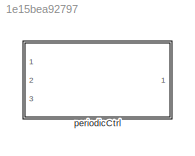
MODEL slx_1e15bea92797
KIND library
CONFIG AbsTol = auto
CONFIG EnableMultiTasking = off
CONFIG FixedStep = auto
CONFIG MaxStep = auto
CONFIG MinStep = auto
CONFIG RelTol = 1e-3
CONFIG SampleTimeConstraint = Unconstrained
CONFIG Solver = VariableStepAuto
CONFIG SolverName = VariableStepAuto
CONFIG StartTime = 0.0
CONFIG StopTime = 10.0
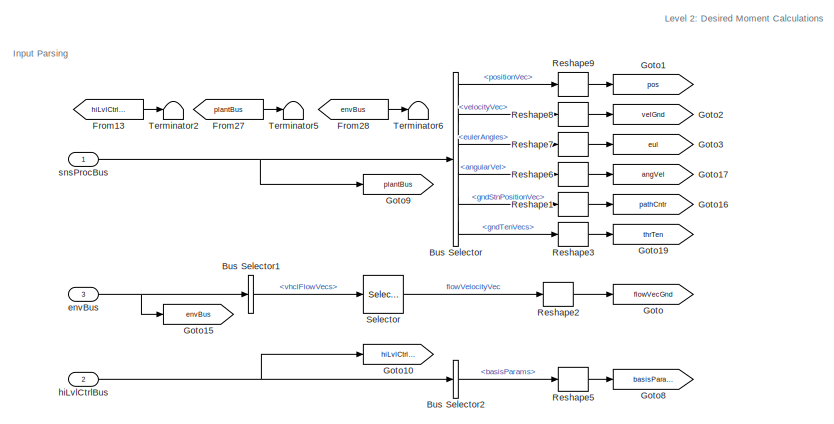
[diagram: periodicCtrl - part 1/2, middle left region]
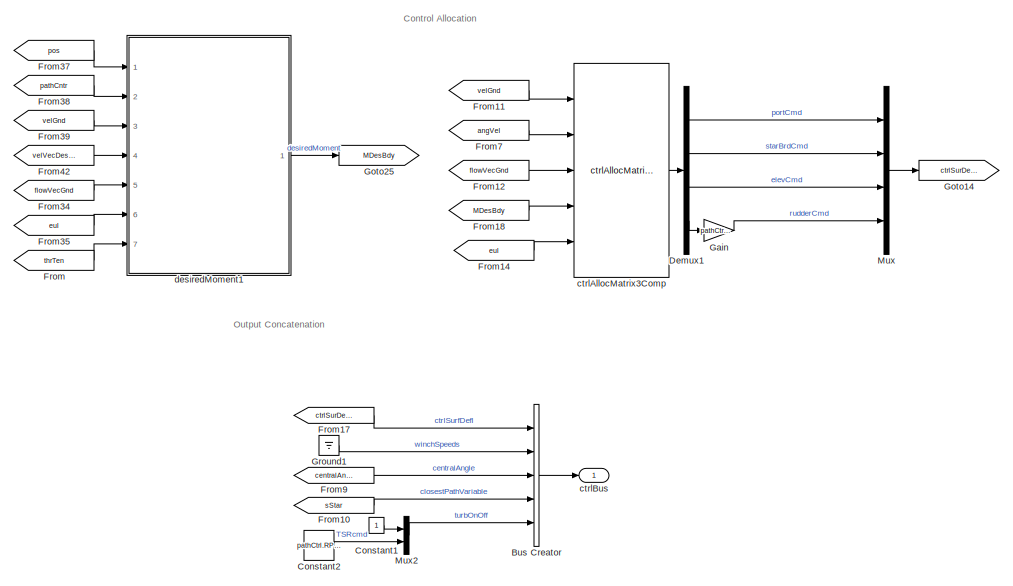
[diagram: periodicCtrl - part 2/2, right side, full height]
BLOCK [SubSystem] periodicCtrl
  InitFcn = initializeBussesFromBlock(gcb)
  LoadFcn = initializeBussesFromBlock(gcb)
  MinAlgLoopOccurrences = on
  Ports = [3, 1]
  RequestExecContextInheritance = off
  StartFcn = initializeBussesFromBlock(gcb)
  VariantControl = strcmpi(FLIGHTCONTROLLER,'pathFollowingControllerManta')
BLOCK [BusCreator] periodicCtrl/Bus Creator
  DisplayOption = bar
  InheritFromInputs = on
  Inputs = 5
  Ports = [5, 1]
BLOCK [BusSelector] periodicCtrl/Bus Selector
  OutputSignals = positionVec,velocityVec,eulerAngles,angularVel,gndStnPositionVec,gndTenVecs
  Ports = [1, 6]
BLOCK [BusSelector] periodicCtrl/Bus Selector1
  OutputSignals = vhclFlowVecs
  Ports = [1, 1]
BLOCK [BusSelector] periodicCtrl/Bus Selector2
  OutputSignals = basisParams
  Ports = [1, 1]
BLOCK [Constant] periodicCtrl/Constant1
BLOCK [Constant] periodicCtrl/Constant2
  Value = pathCtrl.RPMConst.Value
BLOCK [Demux] periodicCtrl/Demux1
  Ports = [1, 4]
BLOCK [From] periodicCtrl/From
  GotoTag = thrTen
BLOCK [From] periodicCtrl/From10
  GotoTag = sStar
BLOCK [From] periodicCtrl/From11
  GotoTag = velGnd
BLOCK [From] periodicCtrl/From12
  GotoTag = flowVecGnd
BLOCK [From] periodicCtrl/From13
  GotoTag = hiLvlCtrlBus
BLOCK [From] periodicCtrl/From14
  GotoTag = eul
BLOCK [From] periodicCtrl/From17
  GotoTag = ctrlSurDefl
BLOCK [From] periodicCtrl/From18
  GotoTag = MDesBdy
BLOCK [From] periodicCtrl/From27
  GotoTag = plantBus
BLOCK [From] periodicCtrl/From28
  GotoTag = envBus
BLOCK [From] periodicCtrl/From34
  GotoTag = flowVecGnd
BLOCK [From] periodicCtrl/From35
  GotoTag = eul
BLOCK [From] periodicCtrl/From37
  GotoTag = pos
BLOCK [From] periodicCtrl/From38
  GotoTag = pathCntr
BLOCK [From] periodicCtrl/From39
  GotoTag = velGnd
BLOCK [From] periodicCtrl/From42
  GotoTag = velVecDesGnd
BLOCK [From] periodicCtrl/From7
  GotoTag = angVel
BLOCK [From] periodicCtrl/From9
  GotoTag = centralAngle
BLOCK [Gain] periodicCtrl/Gain
  Gain = pathCtrl.rudderGain.Value
BLOCK [Goto] periodicCtrl/Goto
  GotoTag = flowVecGnd
BLOCK [Goto] periodicCtrl/Goto1
  GotoTag = pos
BLOCK [Goto] periodicCtrl/Goto10
  GotoTag = hiLvlCtrlBus
BLOCK [Goto] periodicCtrl/Goto14
  GotoTag = ctrlSurDefl
BLOCK [Goto] periodicCtrl/Goto15
  GotoTag = envBus
BLOCK [Goto] periodicCtrl/Goto16
  GotoTag = pathCntr
BLOCK [Goto] periodicCtrl/Goto17
  GotoTag = angVel
BLOCK [Goto] periodicCtrl/Goto19
  GotoTag = thrTen
BLOCK [Goto] periodicCtrl/Goto2
  GotoTag = velGnd
BLOCK [Goto] periodicCtrl/Goto25
  GotoTag = MDesBdy
BLOCK [Goto] periodicCtrl/Goto3
  GotoTag = eul
BLOCK [Goto] periodicCtrl/Goto8
  GotoTag = basisParams
BLOCK [Goto] periodicCtrl/Goto9
  GotoTag = plantBus
BLOCK [Ground] periodicCtrl/Ground1
BLOCK [Mux] periodicCtrl/Mux
  DisplayOption = bar
  Ports = [4, 1]
BLOCK [Mux] periodicCtrl/Mux2
  DisplayOption = bar
  Inputs = 2
  Ports = [2, 1]
BLOCK [Reshape] periodicCtrl/Reshape1
  OutputDimensionality = Column vector (2-D)
  Ports = [1, 1]
BLOCK [Reshape] periodicCtrl/Reshape2
  OutputDimensionality = Column vector (2-D)
  Ports = [1, 1]
BLOCK [Reshape] periodicCtrl/Reshape3
  OutputDimensionality = Column vector (2-D)
  Ports = [1, 1]
BLOCK [Reshape] periodicCtrl/Reshape5
  OutputDimensionality = Column vector (2-D)
  Ports = [1, 1]
BLOCK [Reshape] periodicCtrl/Reshape6
  OutputDimensionality = Column vector (2-D)
  Ports = [1, 1]
BLOCK [Reshape] periodicCtrl/Reshape7
  OutputDimensionality = Column vector (2-D)
  Ports = [1, 1]
BLOCK [Reshape] periodicCtrl/Reshape8
  OutputDimensionality = Column vector (2-D)
  Ports = [1, 1]
BLOCK [Reshape] periodicCtrl/Reshape9
  OutputDimensionality = Column vector (2-D)
  Ports = [1, 1]
BLOCK [Selector] periodicCtrl/Selector
  IndexOptions = Select all,Index vector (dialog)
  Indices = [1 3],5
  InputPortWidth = 3
  NumberOfDimensions = 2
  OutputSizes = 1,1
  Ports = [1, 1]
BLOCK [Terminator] periodicCtrl/Terminator2
BLOCK [Terminator] periodicCtrl/Terminator5
BLOCK [Terminator] periodicCtrl/Terminator6
BLOCK [Reference] periodicCtrl/ctrlAllocMatrix3Comp  REF=ctrlAllocMatrix3Comp_cl/ctrlAllocMatrix3Comp
  Ports = [5, 1]
  SourceBlock = ctrlAllocMatrix3Comp_cl/ctrlAllocMatrix3Comp
BLOCK [Outport] periodicCtrl/ctrlBus
  OutDataTypeStr = Bus: fltCtrlBus
  VectorParamsAs1DForOutWhenUnconnected = off
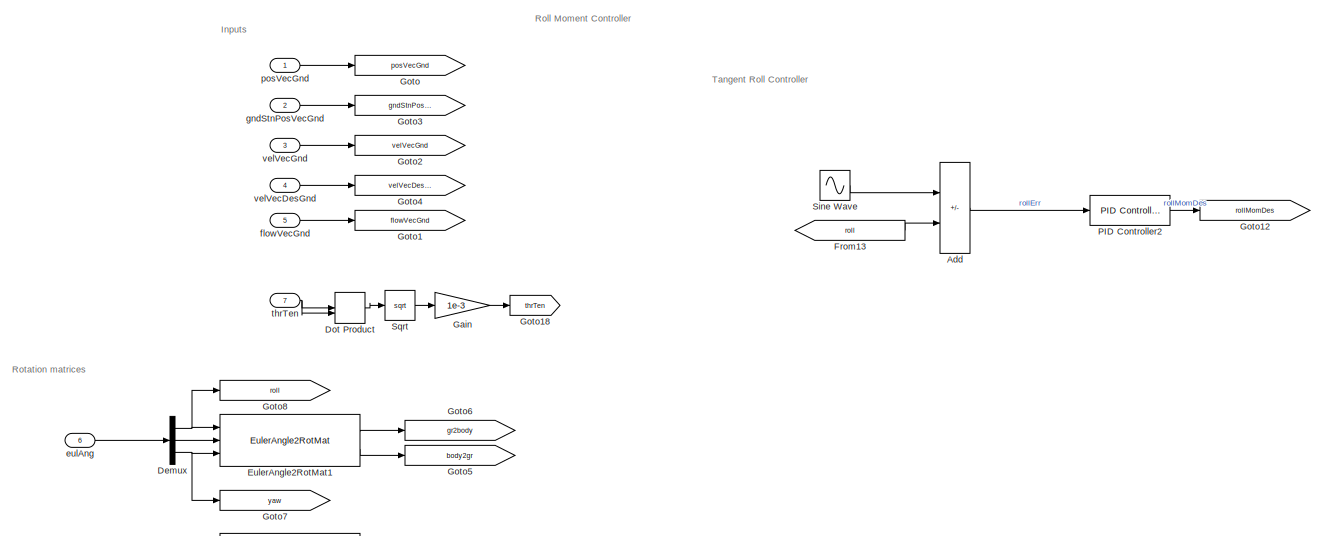
[diagram: periodicCtrl/desiredMoment1 - part 1/4, top center region]
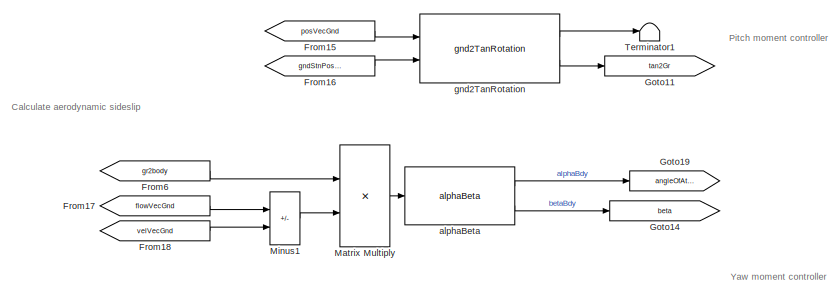
[diagram: periodicCtrl/desiredMoment1 - part 2/4, bottom left region]
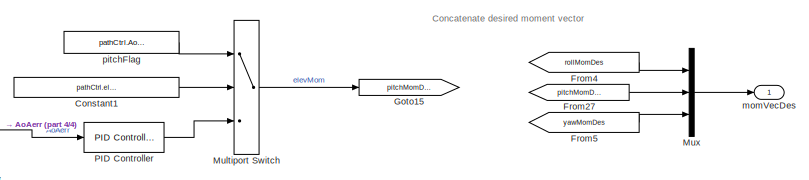
[diagram: periodicCtrl/desiredMoment1 - part 3/4, bottom right region]
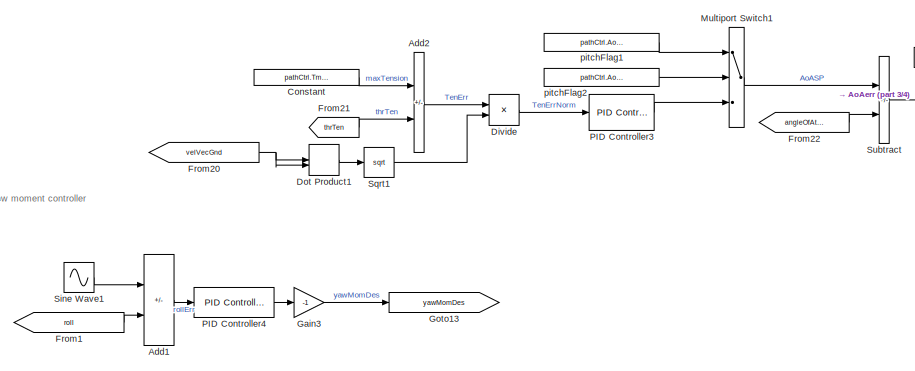
[diagram: periodicCtrl/desiredMoment1 - part 4/4, bottom center region]
BLOCK [SubSystem] periodicCtrl/desiredMoment1
  Ports = [7, 1]
  RequestExecContextInheritance = off
BLOCK [Sum] periodicCtrl/desiredMoment1/Add
  IconShape = rectangular
  Inputs = +-
  Ports = [2, 1]
BLOCK [Sum] periodicCtrl/desiredMoment1/Add1
  IconShape = rectangular
  Inputs = +-
  Ports = [2, 1]
BLOCK [Sum] periodicCtrl/desiredMoment1/Add2
  IconShape = rectangular
  Inputs = +-
  Ports = [2, 1]
BLOCK [Constant] periodicCtrl/desiredMoment1/Constant
  Value = pathCtrl.Tmax.Value
BLOCK [Constant] periodicCtrl/desiredMoment1/Constant1
  Value = pathCtrl.elevatorConst.Value
BLOCK [Demux] periodicCtrl/desiredMoment1/Demux
  Outputs = 3
  Ports = [1, 3]
BLOCK [Product] periodicCtrl/desiredMoment1/Divide
  Inputs = */
  Ports = [2, 1]
BLOCK [DotProduct] periodicCtrl/desiredMoment1/Dot Product
  OutDataTypeStr = Inherit: Inherit via internal rule
BLOCK [DotProduct] periodicCtrl/desiredMoment1/Dot Product1
  OutDataTypeStr = Inherit: Inherit via internal rule
BLOCK [Reference] periodicCtrl/desiredMoment1/EulerAngle2RotMat1  REF=eulAng2RotMat_ul/EulerAngle2RotMat
  Ports = [3, 2]
  SourceBlock = eulAng2RotMat_ul/EulerAngle2RotMat
  SourceType = SubSystem
BLOCK [From] periodicCtrl/desiredMoment1/From1
  GotoTag = roll
BLOCK [From] periodicCtrl/desiredMoment1/From13
  GotoTag = roll
BLOCK [From] periodicCtrl/desiredMoment1/From15
  GotoTag = posVecGnd
BLOCK [From] periodicCtrl/desiredMoment1/From16
  GotoTag = gndStnPosVecGnd
BLOCK [From] periodicCtrl/desiredMoment1/From17
  GotoTag = flowVecGnd
BLOCK [From] periodicCtrl/desiredMoment1/From18
  GotoTag = velVecGnd
BLOCK [From] periodicCtrl/desiredMoment1/From20
  GotoTag = velVecGnd
BLOCK [From] periodicCtrl/desiredMoment1/From21
  GotoTag = thrTen
BLOCK [From] periodicCtrl/desiredMoment1/From22
  GotoTag = angleOfAttack
BLOCK [From] periodicCtrl/desiredMoment1/From27
  GotoTag = pitchMomDes
BLOCK [From] periodicCtrl/desiredMoment1/From4
  GotoTag = rollMomDes
BLOCK [From] periodicCtrl/desiredMoment1/From5
  GotoTag = yawMomDes
BLOCK [From] periodicCtrl/desiredMoment1/From6
  GotoTag = gr2body
BLOCK [Gain] periodicCtrl/desiredMoment1/Gain
  Gain = 1e-3
BLOCK [Gain] periodicCtrl/desiredMoment1/Gain3
  Gain = -1
BLOCK [Goto] periodicCtrl/desiredMoment1/Goto
  GotoTag = posVecGnd
BLOCK [Goto] periodicCtrl/desiredMoment1/Goto1
  GotoTag = flowVecGnd
BLOCK [Goto] periodicCtrl/desiredMoment1/Goto11
  GotoTag = tan2Gr
BLOCK [Goto] periodicCtrl/desiredMoment1/Goto12
  GotoTag = rollMomDes
BLOCK [Goto] periodicCtrl/desiredMoment1/Goto13
  GotoTag = yawMomDes
BLOCK [Goto] periodicCtrl/desiredMoment1/Goto14
  GotoTag = beta
BLOCK [Goto] periodicCtrl/desiredMoment1/Goto15
  GotoTag = pitchMomDes
BLOCK [Goto] periodicCtrl/desiredMoment1/Goto18
  GotoTag = thrTen
BLOCK [Goto] periodicCtrl/desiredMoment1/Goto19
  GotoTag = angleOfAttack
BLOCK [Goto] periodicCtrl/desiredMoment1/Goto2
  GotoTag = velVecGnd
BLOCK [Goto] periodicCtrl/desiredMoment1/Goto3
  GotoTag = gndStnPosVecGnd
BLOCK [Goto] periodicCtrl/desiredMoment1/Goto4
  GotoTag = velVecDesGnd
BLOCK [Goto] periodicCtrl/desiredMoment1/Goto5
  GotoTag = body2gr
BLOCK [Goto] periodicCtrl/desiredMoment1/Goto6
  GotoTag = gr2body
BLOCK [Goto] periodicCtrl/desiredMoment1/Goto7
  GotoTag = yaw
BLOCK [Goto] periodicCtrl/desiredMoment1/Goto8
  GotoTag = roll
BLOCK [Product] periodicCtrl/desiredMoment1/Matrix Multiply
  Multiplication = Matrix(*)
  Ports = [2, 1]
BLOCK [Sum] periodicCtrl/desiredMoment1/Minus1
  IconShape = rectangular
  Inputs = +-
  Ports = [2, 1]
BLOCK [MultiPortSwitch] periodicCtrl/desiredMoment1/Multiport Switch
  DataPortIndices = {0,1}
  DataPortOrder = Specify indices
  InputSameDT = off
  Inputs = 2
  Ports = [3, 1]
  SaturateOnIntegerOverflow = off
BLOCK [MultiPortSwitch] periodicCtrl/desiredMoment1/Multiport Switch1
  DataPortIndices = {0,1}
  DataPortOrder = Specify indices
  InputSameDT = off
  Inputs = 2
  Ports = [3, 1]
  SaturateOnIntegerOverflow = off
BLOCK [Mux] periodicCtrl/desiredMoment1/Mux
  DisplayOption = bar
  Inputs = 3
  Ports = [3, 1]
BLOCK [Reference] periodicCtrl/desiredMoment1/PID Controller  REF=simulink/Continuous/PID Controller
  Ports = [1, 1]
  SourceBlock = simulink/Continuous/PID Controller
  SourceProductBaseCode = SL
  SourceType = PID 1dof
BLOCK [Reference] periodicCtrl/desiredMoment1/PID Controller2  REF=simulink/Continuous/PID Controller
  Ports = [1, 1]
  SourceBlock = simulink/Continuous/PID Controller
  SourceProductBaseCode = SL
  SourceType = PID 1dof
BLOCK [Reference] periodicCtrl/desiredMoment1/PID Controller3  REF=simulink/Continuous/PID Controller
  Ports = [1, 1]
  SourceBlock = simulink/Continuous/PID Controller
  SourceProductBaseCode = SL
  SourceType = PID 1dof
BLOCK [Reference] periodicCtrl/desiredMoment1/PID Controller4  REF=simulink/Continuous/PID Controller
  Ports = [1, 1]
  SourceBlock = simulink/Continuous/PID Controller
  SourceProductBaseCode = SL
  SourceType = PID 1dof
BLOCK [Sin] periodicCtrl/desiredMoment1/Sine Wave
  Amplitude = 0.6
  Frequency = 2*pi/90
  Ports = [0, 1]
  SampleTime = 0
BLOCK [Sin] periodicCtrl/desiredMoment1/Sine Wave1
  Amplitude = 2
  Frequency = 2*pi/90
  Ports = [0, 1]
  SampleTime = 0
BLOCK [Sqrt] periodicCtrl/desiredMoment1/Sqrt
BLOCK [Sqrt] periodicCtrl/desiredMoment1/Sqrt1
BLOCK [Sum] periodicCtrl/desiredMoment1/Subtract
  IconShape = rectangular
  Inputs = +-
  Ports = [2, 1]
BLOCK [Terminator] periodicCtrl/desiredMoment1/Terminator1
BLOCK [Reference] periodicCtrl/desiredMoment1/alphaBeta  REF=alphaBeta_ul/alphaBeta
  Ports = [1, 2]
  SourceBlock = alphaBeta_ul/alphaBeta
  SourceType = SubSystem
BLOCK [Inport] periodicCtrl/desiredMoment1/eulAng
  Port = 6
BLOCK [Inport] periodicCtrl/desiredMoment1/flowVecGnd
  Port = 5
BLOCK [Reference] periodicCtrl/desiredMoment1/gnd2TanRotation  REF=gnd2TanRotation_ul/gnd2TanRotation
  Ports = [2, 2]
  SourceBlock = gnd2TanRotation_ul/gnd2TanRotation
  SourceType = SubSystem
BLOCK [Inport] periodicCtrl/desiredMoment1/gndStnPosVecGnd
  Port = 2
BLOCK [Outport] periodicCtrl/desiredMoment1/momVecDes
  VectorParamsAs1DForOutWhenUnconnected = off
BLOCK [Constant] periodicCtrl/desiredMoment1/pitchFlag
  Value = pathCtrl.AoACtrl.Value
BLOCK [Constant] periodicCtrl/desiredMoment1/pitchFlag1
  Value = pathCtrl.AoASP.Value
BLOCK [Constant] periodicCtrl/desiredMoment1/pitchFlag2
  Value = pathCtrl.AoAConst.Value
BLOCK [Inport] periodicCtrl/desiredMoment1/posVecGnd
BLOCK [Inport] periodicCtrl/desiredMoment1/thrTen
  Port = 7
BLOCK [Inport] periodicCtrl/desiredMoment1/velVecDesGnd
  Port = 4
BLOCK [Inport] periodicCtrl/desiredMoment1/velVecGnd
  Port = 3
BLOCK [Inport] periodicCtrl/envBus
  OutDataTypeStr = Bus: envBus
  Port = 3
BLOCK [Inport] periodicCtrl/hiLvlCtrlBus
  OutDataTypeStr = Bus: hiLvlCtrlBus
  Port = 2
BLOCK [Inport] periodicCtrl/snsProcBus
  OutDataTypeStr = Bus: sensorsProcessingBus
ANNOTATION periodicCtrl: Control Allocation
ANNOTATION periodicCtrl: Input Parsing
ANNOTATION periodicCtrl: Level 2: Desired Moment Calculations
ANNOTATION periodicCtrl: Output Concatenation
ANNOTATION periodicCtrl/desiredMoment1: Calculate aerodynamic sideslip
ANNOTATION periodicCtrl/desiredMoment1: Concatenate desired moment vector
ANNOTATION periodicCtrl/desiredMoment1: Inputs
ANNOTATION periodicCtrl/desiredMoment1: Pitch moment controller
ANNOTATION periodicCtrl/desiredMoment1: Roll Moment Controller
ANNOTATION periodicCtrl/desiredMoment1: Rotation matrices
ANNOTATION periodicCtrl/desiredMoment1: Tangent Roll Controller
ANNOTATION periodicCtrl/desiredMoment1: Yaw moment controller
LINE periodicCtrl/Bus Creator:1 -> periodicCtrl/ctrlBus:1
LINE periodicCtrl/Bus Selector1:1 -> periodicCtrl/Selector:1
LINE periodicCtrl/Bus Selector2:1 -> periodicCtrl/Reshape5:1
LINE periodicCtrl/Bus Selector:1 -> periodicCtrl/Reshape9:1
LINE periodicCtrl/Bus Selector:2 -> periodicCtrl/Reshape8:1
LINE periodicCtrl/Bus Selector:3 -> periodicCtrl/Reshape7:1
LINE periodicCtrl/Bus Selector:4 -> periodicCtrl/Reshape6:1
LINE periodicCtrl/Bus Selector:5 -> periodicCtrl/Reshape1:1
LINE periodicCtrl/Bus Selector:6 -> periodicCtrl/Reshape3:1
LINE periodicCtrl/Constant1:1 -> periodicCtrl/Mux2:1
LINE periodicCtrl/Constant2:1 -> periodicCtrl/Mux2:2
LINE periodicCtrl/Demux1:1 -> periodicCtrl/Mux:1
LINE periodicCtrl/Demux1:2 -> periodicCtrl/Mux:2
LINE periodicCtrl/Demux1:3 -> periodicCtrl/Mux:3
LINE periodicCtrl/Demux1:4 -> periodicCtrl/Gain:1
LINE periodicCtrl/From10:1 -> periodicCtrl/Bus Creator:4
LINE periodicCtrl/From11:1 -> periodicCtrl/ctrlAllocMatrix3Comp:1
LINE periodicCtrl/From12:1 -> periodicCtrl/ctrlAllocMatrix3Comp:3
LINE periodicCtrl/From13:1 -> periodicCtrl/Terminator2:1
LINE periodicCtrl/From14:1 -> periodicCtrl/ctrlAllocMatrix3Comp:5
LINE periodicCtrl/From17:1 -> periodicCtrl/Bus Creator:1
LINE periodicCtrl/From18:1 -> periodicCtrl/ctrlAllocMatrix3Comp:4
LINE periodicCtrl/From27:1 -> periodicCtrl/Terminator5:1
LINE periodicCtrl/From28:1 -> periodicCtrl/Terminator6:1
LINE periodicCtrl/From34:1 -> periodicCtrl/desiredMoment1:5
LINE periodicCtrl/From35:1 -> periodicCtrl/desiredMoment1:6
LINE periodicCtrl/From37:1 -> periodicCtrl/desiredMoment1:1
LINE periodicCtrl/From38:1 -> periodicCtrl/desiredMoment1:2
LINE periodicCtrl/From39:1 -> periodicCtrl/desiredMoment1:3
LINE periodicCtrl/From42:1 -> periodicCtrl/desiredMoment1:4
LINE periodicCtrl/From7:1 -> periodicCtrl/ctrlAllocMatrix3Comp:2
LINE periodicCtrl/From9:1 -> periodicCtrl/Bus Creator:3
LINE periodicCtrl/From:1 -> periodicCtrl/desiredMoment1:7
LINE periodicCtrl/Gain:1 -> periodicCtrl/Mux:4
LINE periodicCtrl/Ground1:1 -> periodicCtrl/Bus Creator:2
LINE periodicCtrl/Mux2:1 -> periodicCtrl/Bus Creator:5
LINE periodicCtrl/Mux:1 -> periodicCtrl/Goto14:1
LINE periodicCtrl/Reshape1:1 -> periodicCtrl/Goto16:1
LINE periodicCtrl/Reshape2:1 -> periodicCtrl/Goto:1
LINE periodicCtrl/Reshape3:1 -> periodicCtrl/Goto19:1
LINE periodicCtrl/Reshape5:1 -> periodicCtrl/Goto8:1
LINE periodicCtrl/Reshape6:1 -> periodicCtrl/Goto17:1
LINE periodicCtrl/Reshape7:1 -> periodicCtrl/Goto3:1
LINE periodicCtrl/Reshape8:1 -> periodicCtrl/Goto2:1
LINE periodicCtrl/Reshape9:1 -> periodicCtrl/Goto1:1
LINE periodicCtrl/Selector:1 -> periodicCtrl/Reshape2:1
LINE periodicCtrl/ctrlAllocMatrix3Comp:1 -> periodicCtrl/Demux1:1
LINE periodicCtrl/desiredMoment1/Add1:1 -> periodicCtrl/desiredMoment1/PID Controller4:1
LINE periodicCtrl/desiredMoment1/Add2:1 -> periodicCtrl/desiredMoment1/Divide:1
LINE periodicCtrl/desiredMoment1/Add:1 -> periodicCtrl/desiredMoment1/PID Controller2:1
LINE periodicCtrl/desiredMoment1/Constant1:1 -> periodicCtrl/desiredMoment1/Multiport Switch:2
LINE periodicCtrl/desiredMoment1/Constant:1 -> periodicCtrl/desiredMoment1/Add2:1
NET periodicCtrl/desiredMoment1/Demux:1 -> periodicCtrl/desiredMoment1/EulerAngle2RotMat1:1, periodicCtrl/desiredMoment1/Goto8:1
LINE periodicCtrl/desiredMoment1/Demux:2 -> periodicCtrl/desiredMoment1/EulerAngle2RotMat1:2
NET periodicCtrl/desiredMoment1/Demux:3 -> periodicCtrl/desiredMoment1/EulerAngle2RotMat1:3, periodicCtrl/desiredMoment1/Goto7:1
LINE periodicCtrl/desiredMoment1/Divide:1 -> periodicCtrl/desiredMoment1/PID Controller3:1
LINE periodicCtrl/desiredMoment1/Dot Product1:1 -> periodicCtrl/desiredMoment1/Sqrt1:1
LINE periodicCtrl/desiredMoment1/Dot Product:1 -> periodicCtrl/desiredMoment1/Sqrt:1
LINE periodicCtrl/desiredMoment1/EulerAngle2RotMat1:1 -> periodicCtrl/desiredMoment1/Goto6:1
LINE periodicCtrl/desiredMoment1/EulerAngle2RotMat1:2 -> periodicCtrl/desiredMoment1/Goto5:1
LINE periodicCtrl/desiredMoment1/From13:1 -> periodicCtrl/desiredMoment1/Add:2
LINE periodicCtrl/desiredMoment1/From15:1 -> periodicCtrl/desiredMoment1/gnd2TanRotation:1
LINE periodicCtrl/desiredMoment1/From16:1 -> periodicCtrl/desiredMoment1/gnd2TanRotation:2
LINE periodicCtrl/desiredMoment1/From17:1 -> periodicCtrl/desiredMoment1/Minus1:1
LINE periodicCtrl/desiredMoment1/From18:1 -> periodicCtrl/desiredMoment1/Minus1:2
LINE periodicCtrl/desiredMoment1/From1:1 -> periodicCtrl/desiredMoment1/Add1:2
NET periodicCtrl/desiredMoment1/From20:1 -> periodicCtrl/desiredMoment1/Dot Product1:1, periodicCtrl/desiredMoment1/Dot Product1:2
LINE periodicCtrl/desiredMoment1/From21:1 -> periodicCtrl/desiredMoment1/Add2:2
LINE periodicCtrl/desiredMoment1/From22:1 -> periodicCtrl/desiredMoment1/Subtract:2
LINE periodicCtrl/desiredMoment1/From27:1 -> periodicCtrl/desiredMoment1/Mux:2
LINE periodicCtrl/desiredMoment1/From4:1 -> periodicCtrl/desiredMoment1/Mux:1
LINE periodicCtrl/desiredMoment1/From5:1 -> periodicCtrl/desiredMoment1/Mux:3
LINE periodicCtrl/desiredMoment1/From6:1 -> periodicCtrl/desiredMoment1/Matrix Multiply:1
LINE periodicCtrl/desiredMoment1/Gain3:1 -> periodicCtrl/desiredMoment1/Goto13:1
LINE periodicCtrl/desiredMoment1/Gain:1 -> periodicCtrl/desiredMoment1/Goto18:1
LINE periodicCtrl/desiredMoment1/Matrix Multiply:1 -> periodicCtrl/desiredMoment1/alphaBeta:1
LINE periodicCtrl/desiredMoment1/Minus1:1 -> periodicCtrl/desiredMoment1/Matrix Multiply:2
LINE periodicCtrl/desiredMoment1/Multiport Switch1:1 -> periodicCtrl/desiredMoment1/Subtract:1
LINE periodicCtrl/desiredMoment1/Multiport Switch:1 -> periodicCtrl/desiredMoment1/Goto15:1
LINE periodicCtrl/desiredMoment1/Mux:1 -> periodicCtrl/desiredMoment1/momVecDes:1
LINE periodicCtrl/desiredMoment1/PID Controller2:1 -> periodicCtrl/desiredMoment1/Goto12:1
LINE periodicCtrl/desiredMoment1/PID Controller3:1 -> periodicCtrl/desiredMoment1/Multiport Switch1:3
LINE periodicCtrl/desiredMoment1/PID Controller4:1 -> periodicCtrl/desiredMoment1/Gain3:1
LINE periodicCtrl/desiredMoment1/PID Controller:1 -> periodicCtrl/desiredMoment1/Multiport Switch:3
LINE periodicCtrl/desiredMoment1/Sine Wave1:1 -> periodicCtrl/desiredMoment1/Add1:1
LINE periodicCtrl/desiredMoment1/Sine Wave:1 -> periodicCtrl/desiredMoment1/Add:1
LINE periodicCtrl/desiredMoment1/Sqrt1:1 -> periodicCtrl/desiredMoment1/Divide:2
LINE periodicCtrl/desiredMoment1/Sqrt:1 -> periodicCtrl/desiredMoment1/Gain:1
LINE periodicCtrl/desiredMoment1/Subtract:1 -> periodicCtrl/desiredMoment1/PID Controller:1
LINE periodicCtrl/desiredMoment1/alphaBeta:1 -> periodicCtrl/desiredMoment1/Goto19:1
LINE periodicCtrl/desiredMoment1/alphaBeta:2 -> periodicCtrl/desiredMoment1/Goto14:1
LINE periodicCtrl/desiredMoment1/eulAng:1 -> periodicCtrl/desiredMoment1/Demux:1
LINE periodicCtrl/desiredMoment1/flowVecGnd:1 -> periodicCtrl/desiredMoment1/Goto1:1
LINE periodicCtrl/desiredMoment1/gnd2TanRotation:1 -> periodicCtrl/desiredMoment1/Terminator1:1
LINE periodicCtrl/desiredMoment1/gnd2TanRotation:2 -> periodicCtrl/desiredMoment1/Goto11:1
LINE periodicCtrl/desiredMoment1/gndStnPosVecGnd:1 -> periodicCtrl/desiredMoment1/Goto3:1
LINE periodicCtrl/desiredMoment1/pitchFlag1:1 -> periodicCtrl/desiredMoment1/Multiport Switch1:1
LINE periodicCtrl/desiredMoment1/pitchFlag2:1 -> periodicCtrl/desiredMoment1/Multiport Switch1:2
LINE periodicCtrl/desiredMoment1/pitchFlag:1 -> periodicCtrl/desiredMoment1/Multiport Switch:1
LINE periodicCtrl/desiredMoment1/posVecGnd:1 -> periodicCtrl/desiredMoment1/Goto:1
NET periodicCtrl/desiredMoment1/thrTen:1 -> periodicCtrl/desiredMoment1/Dot Product:1, periodicCtrl/desiredMoment1/Dot Product:2
LINE periodicCtrl/desiredMoment1/velVecDesGnd:1 -> periodicCtrl/desiredMoment1/Goto4:1
LINE periodicCtrl/desiredMoment1/velVecGnd:1 -> periodicCtrl/desiredMoment1/Goto2:1
LINE periodicCtrl/desiredMoment1:1 -> periodicCtrl/Goto25:1
NET periodicCtrl/envBus:1 -> periodicCtrl/Bus Selector1:1, periodicCtrl/Goto15:1
NET periodicCtrl/hiLvlCtrlBus:1 -> periodicCtrl/Bus Selector2:1, periodicCtrl/Goto10:1
NET periodicCtrl/snsProcBus:1 -> periodicCtrl/Bus Selector:1, periodicCtrl/Goto9:1
note: NET lines group one-source signal fan-out (src -> all destinations, sorted); 1:1 wires keep LINE
